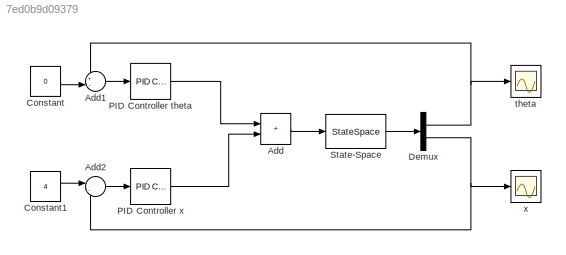
MODEL slx_7ed0b9d09379
KIND model
CONFIG AbsTol = auto
CONFIG EnableMultiTasking = off
CONFIG FixedStep = auto
CONFIG MaxStep = auto
CONFIG MinStep = auto
CONFIG RelTol = 1e-3
CONFIG SampleTimeConstraint = Unconstrained
CONFIG SolverName = VariableStepAuto
CONFIG StartTime = 0.0
CONFIG StopTime = 20
BLOCK [Sum] Add
  IconShape = rectangular
BLOCK [Sum] Add1
  Inputs = +-|
BLOCK [Sum] Add2
  Inputs = |-+
BLOCK [Constant] Constant
  Value = 0
BLOCK [Constant] Constant1
  Value = 4
BLOCK [Demux] Demux
  Outputs = 2
BLOCK [Reference] PID Controller theta  REF=slpidlib/PID Controller
  LibrarySourceBlock = simulink/Continuous/PID Controller
  SourceBlock = slpidlib/PID Controller
  SourceType = PID 1dof
BLOCK [Reference] PID Controller x  REF=slpidlib/PID Controller
  LibrarySourceBlock = simulink/Continuous/PID Controller
  SourceBlock = slpidlib/PID Controller
  SourceType = PID 1dof
BLOCK [StateSpace] State-Space
  A = [0 1 0 0; 41.6300 0 0 0; 0 0 0 1;-0.6099 0 0 0];
  B = [0;-2.7584;0;0.6898]
  C = [1 0 0 0;0 0 1 0]
  D = [0;0]
  InitialCondition = 0
BLOCK [Scope] theta
  Floating = off
  NumInputPorts = 1
  ScopeSpecificationString = Simulink.scopes.TimeScopeBlockCfg('CurrentConfiguration', extmgr.ConfigurationSet(extmgr.Configuration('Core','General UI',true,'FigureColor',[1 1 1]),extmgr.Configuration('Core','Source UI',true),extmgr.Configuration('Sources','WiredSimulink',true),extmgr.Configuration('Visuals','Time Domain',true,'SerializedDisplays',{struct('MinYLimReal','-0.39389','MaxYLimReal','2.61255','YLabelReal','','MinYL...<+1601ch>
BLOCK [Scope] x
  Floating = off
  NumInputPorts = 1
  ScopeSpecificationString = Simulink.scopes.TimeScopeBlockCfg('CurrentConfiguration', extmgr.ConfigurationSet(extmgr.Configuration('Core','General UI',true,'FigureColor',[1 1 1]),extmgr.Configuration('Core','Source UI',true),extmgr.Configuration('Sources','WiredSimulink',true,'DataLoggingVariableName','ScopeData1'),extmgr.Configuration('Visuals','Time Domain',true,'SerializedDisplays',{struct('MinYLimReal','-1.24211','MaxYLi...<+1627ch>
LINE Add1:1 -> PID Controller theta:1
LINE Add2:1 -> PID Controller x:1
LINE Add:1 -> State-Space:1
LINE Constant1:1 -> Add2:1
LINE Constant:1 -> Add1:2
NET Demux:1 -> Add1:1, theta:1
NET Demux:2 -> Add2:2, x:1
LINE PID Controller theta:1 -> Add:1
LINE PID Controller x:1 -> Add:2
LINE State-Space:1 -> Demux:1
note: NET lines group one-source signal fan-out (src -> all destinations, sorted); 1:1 wires keep LINE
